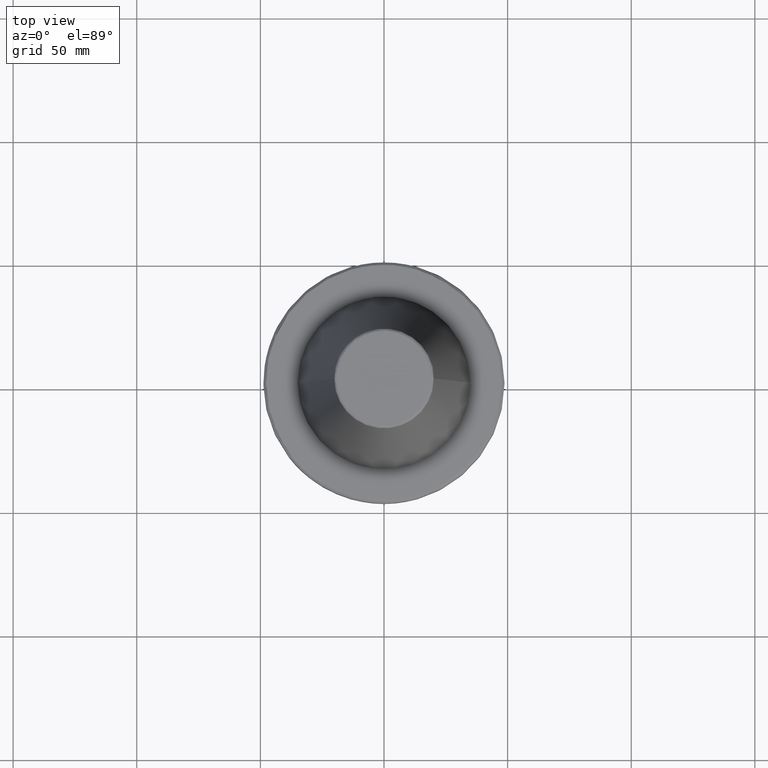
[diagram: clean part render]
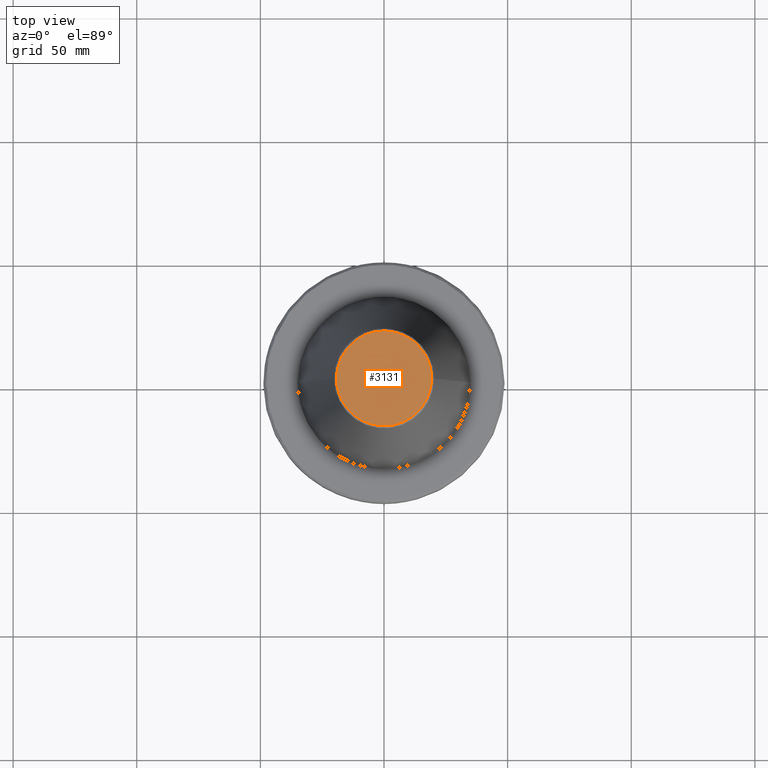
[diagram: same view with one face highlighted and labeled with its STEP entity id]
A machine part, top view. The second image highlights one B-rep face of the part: STEP entity #3131.
In plain terms, the highlighted planar face has unit normal (0, 0, 1).
Its self-contained STEP definition (entity closure, byte-faithful):
#324 = DIRECTION ( 'NONE',  ( 0.0000000000000000000, 0.0000000000000000000, 1.000000000000000000 ) ) ;
#413 =( BOUNDED_CURVE ( )  B_SPLINE_CURVE ( 3, ( #2193, #2213, #2225, #2169 ),
 .UNSPECIFIED., .F., .T. ) 
 B_SPLINE_CURVE_WITH_KNOTS ( ( 4, 4 ),
 ( 0.0000000000000000000, 1.000000000000000000 ),
 .UNSPECIFIED. ) 
 CURVE ( )  GEOMETRIC_REPRESENTATION_ITEM ( )  RATIONAL_B_SPLINE_CURVE ( ( 1.000000000000000000, 0.3333333333333333700, 0.3333333333333333700, 1.000000000000000000 ) ) 
 REPRESENTATION_ITEM ( '' )  );
#752 = EDGE_CURVE ( 'NONE', #2887, #2484, #413, .T. ) ;
#922 = CARTESIAN_POINT ( 'NONE',  ( 19.22157500054538900, 0.0000000000000000000, 101.7500000000000000 ) ) ;
#955 = AXIS2_PLACEMENT_3D ( 'NONE', #3240, #324, #2232 ) ;
#1172 = ORIENTED_EDGE ( 'NONE', *, *, #752, .F. ) ;
#1205 = CARTESIAN_POINT ( 'NONE',  ( -19.22157500054538900, 2.378200593091449400E-015, 101.7500000000000000 ) ) ;
#1962 = PLANE ( 'NONE',  #955 ) ;
#2169 = CARTESIAN_POINT ( 'NONE',  ( 19.22157500054538900, 0.0000000000000000000, 101.7500000000000000 ) ) ;
#2193 = CARTESIAN_POINT ( 'NONE',  ( -19.22157500054538900, 2.378200593091449400E-015, 101.7500000000000000 ) ) ;
#2213 = CARTESIAN_POINT ( 'NONE',  ( -19.22157500054538600, 38.44315000109077100, 101.7500000000000000 ) ) ;
#2225 = CARTESIAN_POINT ( 'NONE',  ( 19.22157500054538900, 38.44315000109077100, 101.7500000000000000 ) ) ;
#2232 = DIRECTION ( 'NONE',  ( 1.000000000000000000, 0.0000000000000000000, -0.0000000000000000000 ) ) ;
#2306 = CARTESIAN_POINT ( 'NONE',  ( -19.22157500054538900, 2.378200593091449400E-015, 101.7500000000000000 ) ) ;
#2484 = VERTEX_POINT ( 'NONE', #2638 ) ;
#2506 = CARTESIAN_POINT ( 'NONE',  ( 19.22157500054538900, -38.44315000109077100, 101.7500000000000000 ) ) ;
#2626 =( BOUNDED_CURVE ( )  B_SPLINE_CURVE ( 3, ( #922, #2506, #2765, #1205 ),
 .UNSPECIFIED., .F., .T. ) 
 B_SPLINE_CURVE_WITH_KNOTS ( ( 4, 4 ),
 ( 0.0000000000000000000, 1.000000000000000000 ),
 .UNSPECIFIED. ) 
 CURVE ( )  GEOMETRIC_REPRESENTATION_ITEM ( )  RATIONAL_B_SPLINE_CURVE ( ( 1.000000000000000000, 0.3333333333333333700, 0.3333333333333333700, 1.000000000000000000 ) ) 
 REPRESENTATION_ITEM ( '' )  );
#2638 = CARTESIAN_POINT ( 'NONE',  ( 19.22157500054538900, 0.0000000000000000000, 101.7500000000000000 ) ) ;
#2765 = CARTESIAN_POINT ( 'NONE',  ( -19.22157500054538900, -38.44315000109077100, 101.7500000000000000 ) ) ;
#2808 = EDGE_CURVE ( 'NONE', #2484, #2887, #2626, .T. ) ;
#2887 = VERTEX_POINT ( 'NONE', #2306 ) ;
#2974 = EDGE_LOOP ( 'NONE', ( #1172, #3016 ) ) ;
#3016 = ORIENTED_EDGE ( 'NONE', *, *, #2808, .F. ) ;
#3131 = ADVANCED_FACE ( 'NONE', ( #3278 ), #1962, .T. ) ;
#3240 = CARTESIAN_POINT ( 'NONE',  ( 0.0000000000000000000, 0.0000000000000000000, 101.7500000000000000 ) ) ;
#3278 = FACE_OUTER_BOUND ( 'NONE', #2974, .T. ) ;